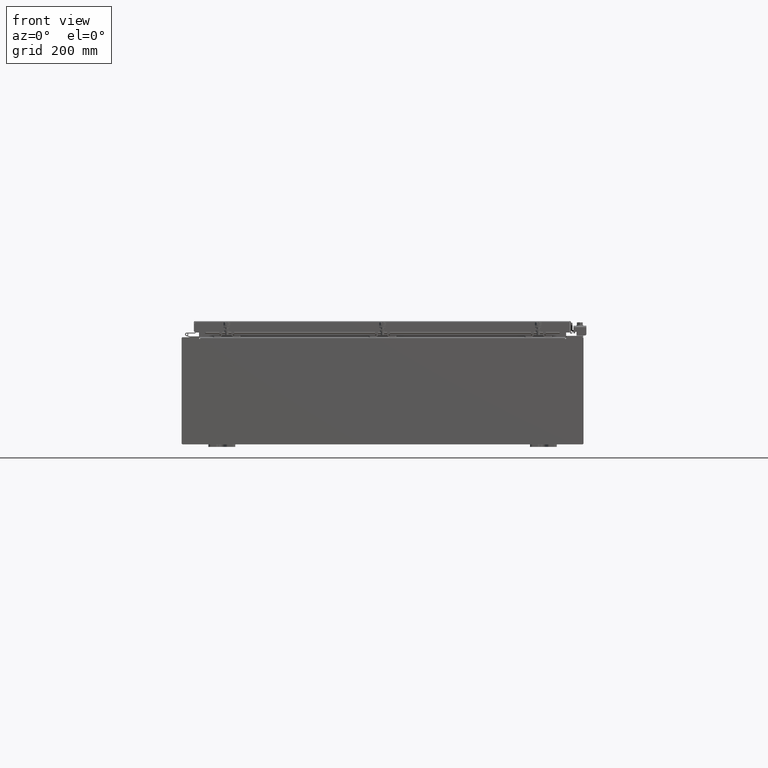
[diagram: clean part render]
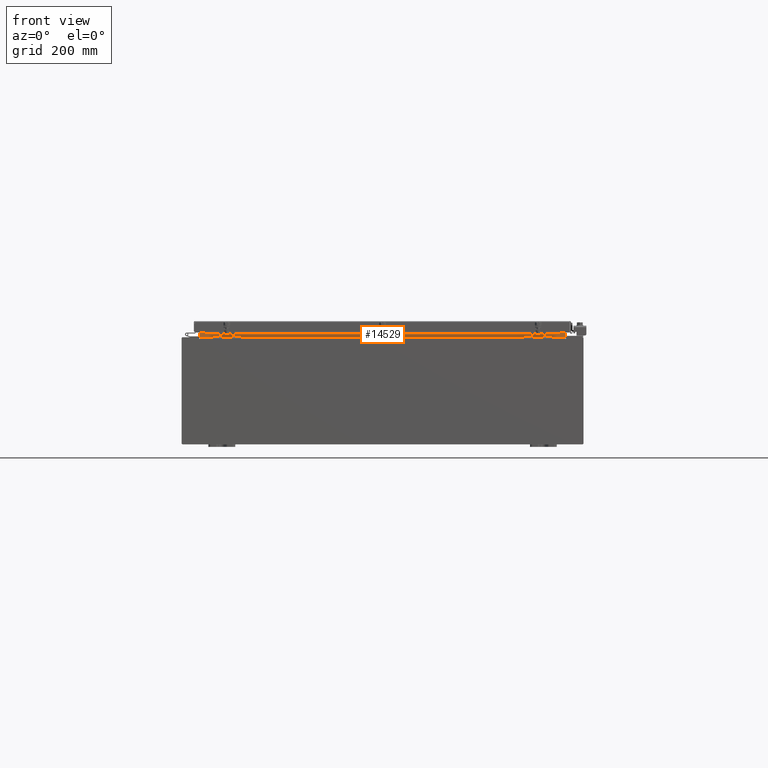
[diagram: same view with one face highlighted and labeled with its STEP entity id]
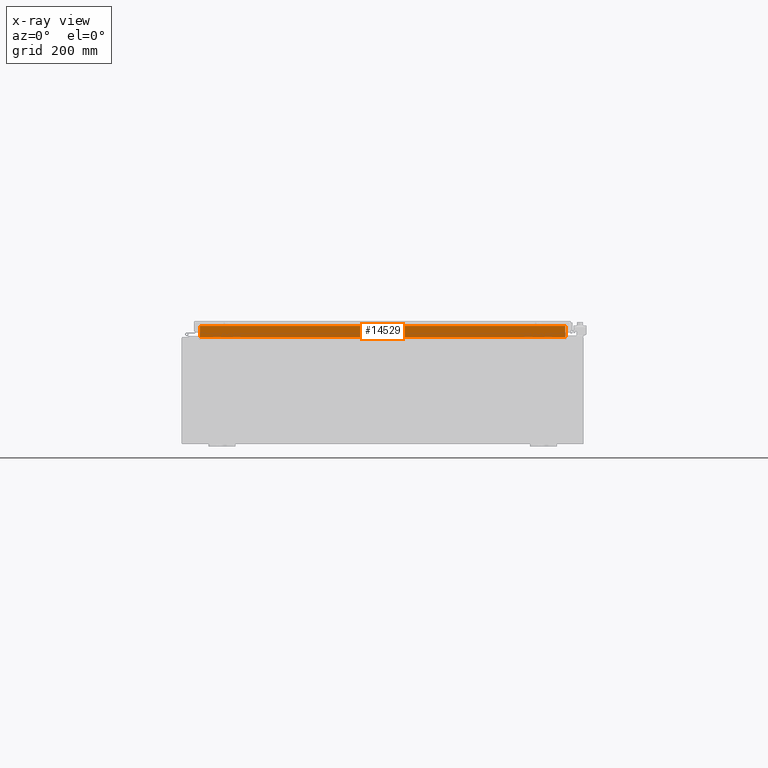
[diagram: x-ray of the same camera — body ghosted, the highlighted face saturated]
A machine part, front view. The second image highlights one B-rep face of the part: STEP entity #14529.
The next image is the same camera in x-ray: the body ghosted, the highlighted face saturated — about 0% of this face is hidden behind the body in this view.
In plain terms, the highlighted planar face has unit normal (0, -1, 0).
Its self-contained STEP definition (entity closure, byte-faithful):
#1171 = VECTOR ( 'NONE', #35287, 39.37007874015748100 ) ;
#4205 = VECTOR ( 'NONE', #47120, 39.37007874015748100 ) ;
#4980 = VECTOR ( 'NONE', #14108, 39.37007874015748100 ) ;
#5505 = CARTESIAN_POINT ( 'NONE',  ( -13.63719999999999800, -1.300299999999999800, 4.013000000000003500 ) ) ;
#5618 = ORIENTED_EDGE ( 'NONE', *, *, #28060, .F. ) ;
#6894 = ORIENTED_EDGE ( 'NONE', *, *, #30966, .F. ) ;
#7392 = VERTEX_POINT ( 'NONE', #22648 ) ;
#9759 = CARTESIAN_POINT ( 'NONE',  ( 13.63720000000000400, -1.300299999999999300, 4.837600000000003700 ) ) ;
#10125 = DIRECTION ( 'NONE',  ( -0.0000000000000000000, -0.0000000000000000000, -1.000000000000000000 ) ) ;
#10837 = VERTEX_POINT ( 'NONE', #42294 ) ;
#11098 = LINE ( 'NONE', #5505, #1171 ) ;
#12378 = ORIENTED_EDGE ( 'NONE', *, *, #45490, .F. ) ;
#14108 = DIRECTION ( 'NONE',  ( -0.0000000000000000000, -0.0000000000000000000, 1.000000000000000000 ) ) ;
#14529 = ADVANCED_FACE ( 'NONE', ( #20238 ), #33520, .T. ) ;
#14972 = DIRECTION ( 'NONE',  ( 0.0000000000000000000, -0.0000000000000000000, 1.000000000000000000 ) ) ;
#20238 = FACE_OUTER_BOUND ( 'NONE', #43322, .T. ) ;
#22648 = CARTESIAN_POINT ( 'NONE',  ( 13.63720000000000000, -1.300299999999999800, 4.013000000000003500 ) ) ;
#24081 = ORIENTED_EDGE ( 'NONE', *, *, #33991, .F. ) ;
#24420 = AXIS2_PLACEMENT_3D ( 'NONE', #29588, #37267, #14972 ) ;
#27047 = VERTEX_POINT ( 'NONE', #32785 ) ;
#28060 = EDGE_CURVE ( 'NONE', #10837, #7392, #11098, .T. ) ;
#28618 = CARTESIAN_POINT ( 'NONE',  ( -13.63719999999999800, -1.300299999999999800, 4.000000000000004400 ) ) ;
#29588 = CARTESIAN_POINT ( 'NONE',  ( 0.0000000000000000000, -1.300299999999999800, 0.0000000000000000000 ) ) ;
#30190 = VECTOR ( 'NONE', #10125, 39.37007874015748100 ) ;
#30966 = EDGE_CURVE ( 'NONE', #7392, #35767, #34679, .T. ) ;
#31041 = CARTESIAN_POINT ( 'NONE',  ( 13.63720000000000400, -1.300299999999999800, 4.837600000000003700 ) ) ;
#32785 = CARTESIAN_POINT ( 'NONE',  ( -13.63719999999999800, -1.300299999999999300, 4.837600000000003700 ) ) ;
#33520 = PLANE ( 'NONE',  #24420 ) ;
#33991 = EDGE_CURVE ( 'NONE', #35767, #27047, #43799, .T. ) ;
#34679 = LINE ( 'NONE', #36238, #4980 ) ;
#35287 = DIRECTION ( 'NONE',  ( 1.000000000000000000, 0.0000000000000000000, -2.003232330437526000E-017 ) ) ;
#35767 = VERTEX_POINT ( 'NONE', #31041 ) ;
#36238 = CARTESIAN_POINT ( 'NONE',  ( 13.63720000000000400, -1.300299999999999800, 4.925300000000004500 ) ) ;
#37267 = DIRECTION ( 'NONE',  ( 0.0000000000000000000, 1.000000000000000000, 0.0000000000000000000 ) ) ;
#41270 = LINE ( 'NONE', #28618, #30190 ) ;
#42294 = CARTESIAN_POINT ( 'NONE',  ( -13.63719999999999800, -1.300299999999999800, 4.013000000000003500 ) ) ;
#43322 = EDGE_LOOP ( 'NONE', ( #12378, #24081, #6894, #5618 ) ) ;
#43799 = LINE ( 'NONE', #9759, #4205 ) ;
#45490 = EDGE_CURVE ( 'NONE', #27047, #10837, #41270, .T. ) ;
#47120 = DIRECTION ( 'NONE',  ( -1.000000000000000000, -0.0000000000000000000, -0.0000000000000000000 ) ) ;